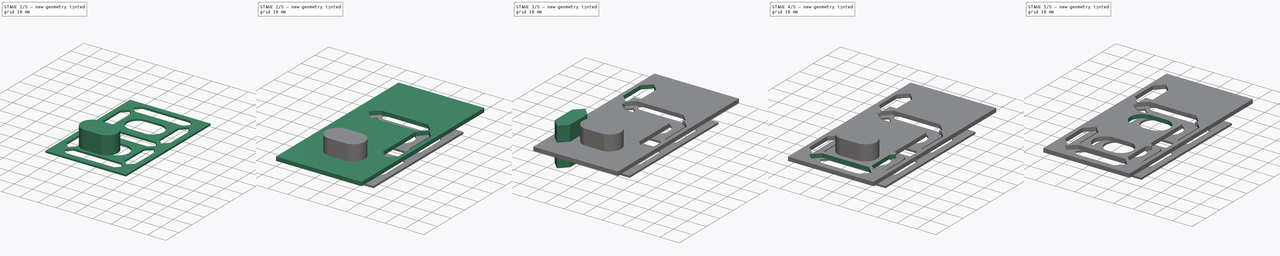
[diagram: build sequence overview — one tinted view per stage of 5, left to right]
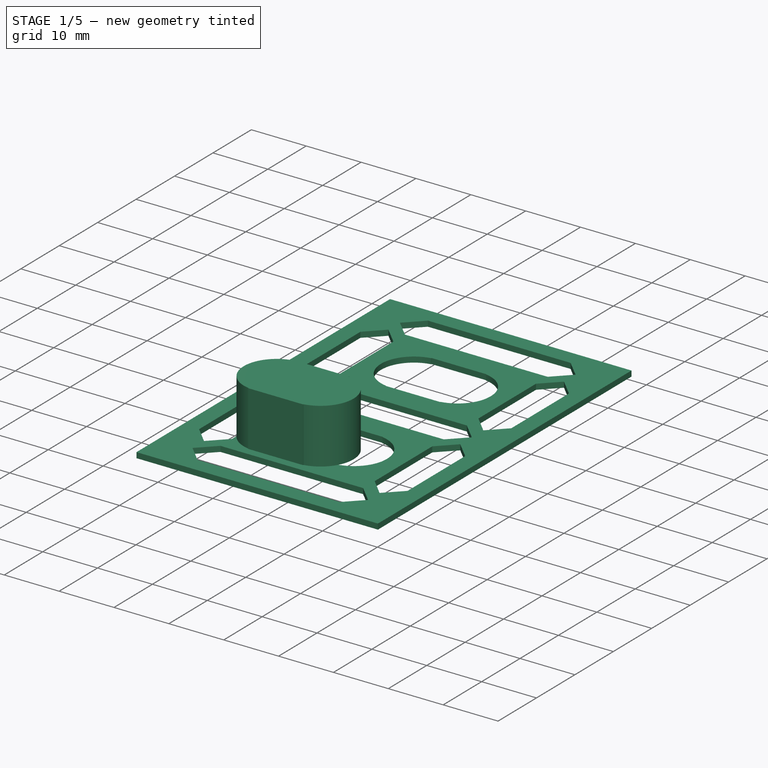
[diagram: stage 1 of 5 — iso view after this stage's code; geometry added in this stage tinted green]
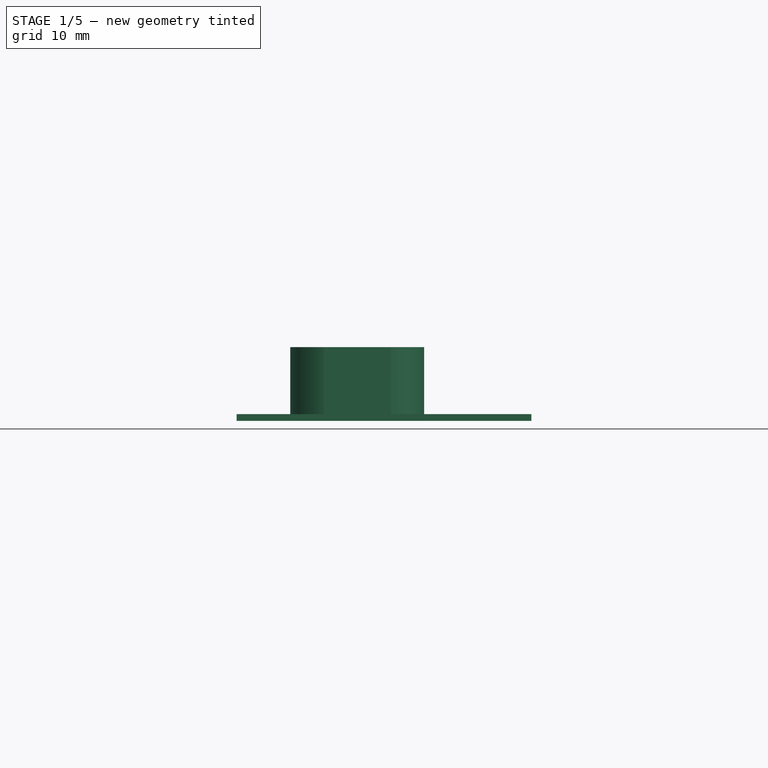
[diagram: stage 1 of 5 — front view after this stage's code; geometry added in this stage tinted green]
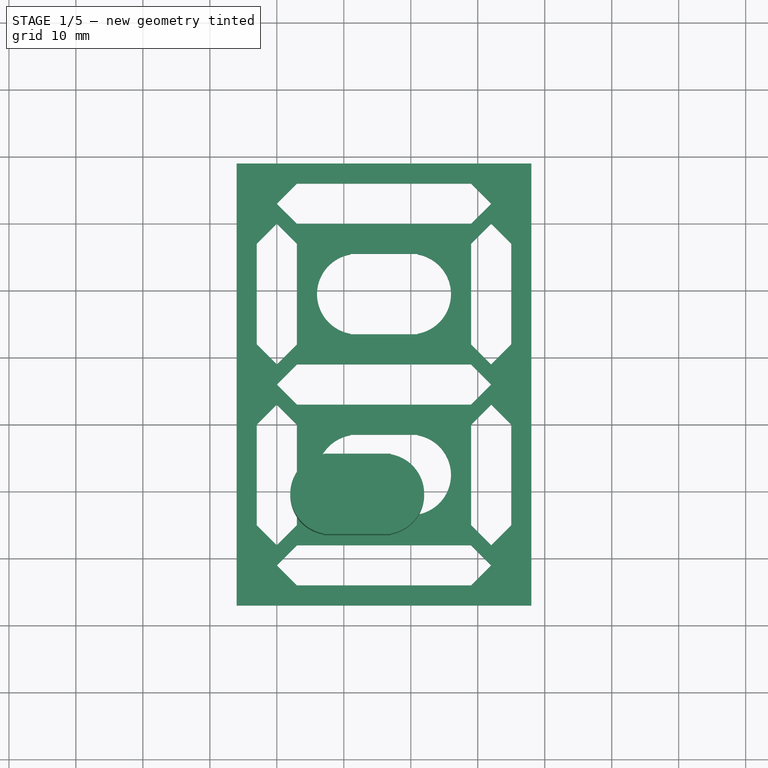
[diagram: stage 1 of 5 — top view after this stage's code; geometry added in this stage tinted green]
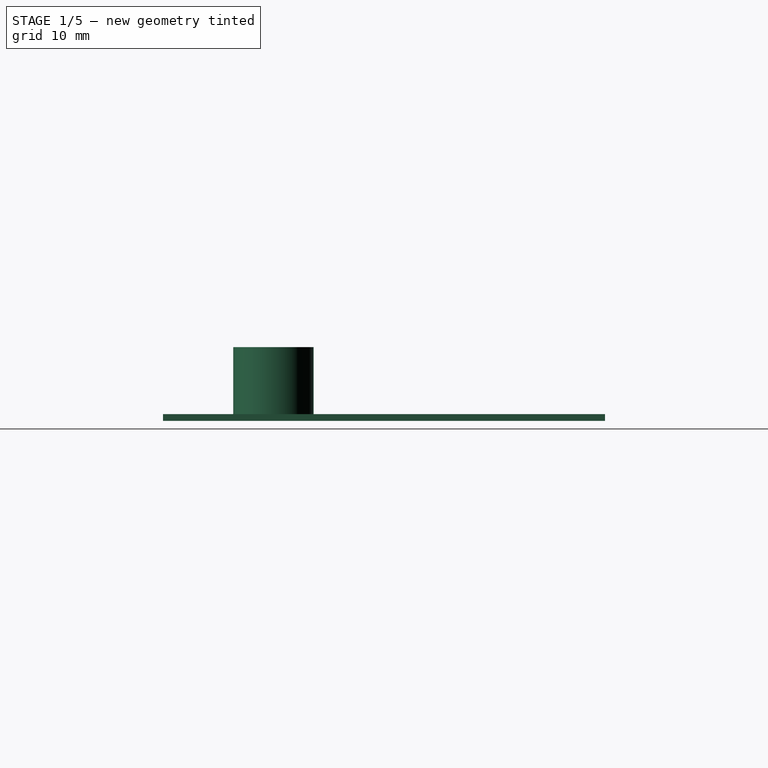
[diagram: stage 1 of 5 — right view after this stage's code; geometry added in this stage tinted green]
FCSTD DOCUMENT  (FreeCAD 0.17R13522 (Git))
Label: 7segments
License: CreativeCommons Attribution-ShareAlike
LicenseURL: http://creativecommons.org/licenses/by-sa/4.0/
objects: Part::Cut×10, Part::Box×9, Sketcher::SketchObject×7, Part::Extrusion×7, Part::Cylinder×4, Part::MultiFuse×4, Part::Feature×2
note: 43 computed .brp shape members not serialized (recipe doc carries the construction recipe); baked Part::Feature solids carry a one-line shape summary decoded from their .brp

FEATURE [Part::Cylinder] Cylinder
  Angle = 360
  AttacherType = Attacher::AttachEngine3D
  Height = 10
  Placement = pos=(18,19.5,0) rot=(0,0,1;0rad)
  Radius = 6
FEATURE [Part::Cylinder] Cylinder001
  Angle = 360
  AttacherType = Attacher::AttachEngine3D
  Height = 10
  Placement = pos=(26,19.5,0) rot=(0,0,1;0rad)
  Radius = 6
FEATURE [Part::Box] Box006  label="Cube006"
  AttacherType = Attacher::AttachEngine3D
  Height = 10
  Length = 10
  Placement = pos=(17,13.5,0) rot=(0,0,1;0rad)
  Width = 12
FEATURE [Part::MultiFuse] Fusion
  Shapes = -> [Cylinder,Box006]
FEATURE [Part::MultiFuse] Fusion001
  Shapes = -> [Cylinder001,Fusion]
FEATURE [Part::Feature] Cut008001  label="plantilla_1mm"
  Placement = pos=(4,3,-1) rot=(0,0,1;0rad)
  shape: bbox 44 x 66 x 4 mm, 64 faces (baked)
FEATURE [Part::Box] Box008  label="Cube008"
  AttacherType = Attacher::AttachEngine3D
  Height = 10
  Length = 52
  Width = 81
FEATURE [Part::Cut] Cut008002  label="plantilla_1mm001"
  Base = -> Cut008001
  Tool = -> Box008
FEATURE [Part::Feature] Fusion002001  label="Fusion004"
  Placement = pos=(0,27,0) rot=(0,0,1;0rad)
  shape: bbox 20 x 12 x 10 mm, 35 faces (baked)
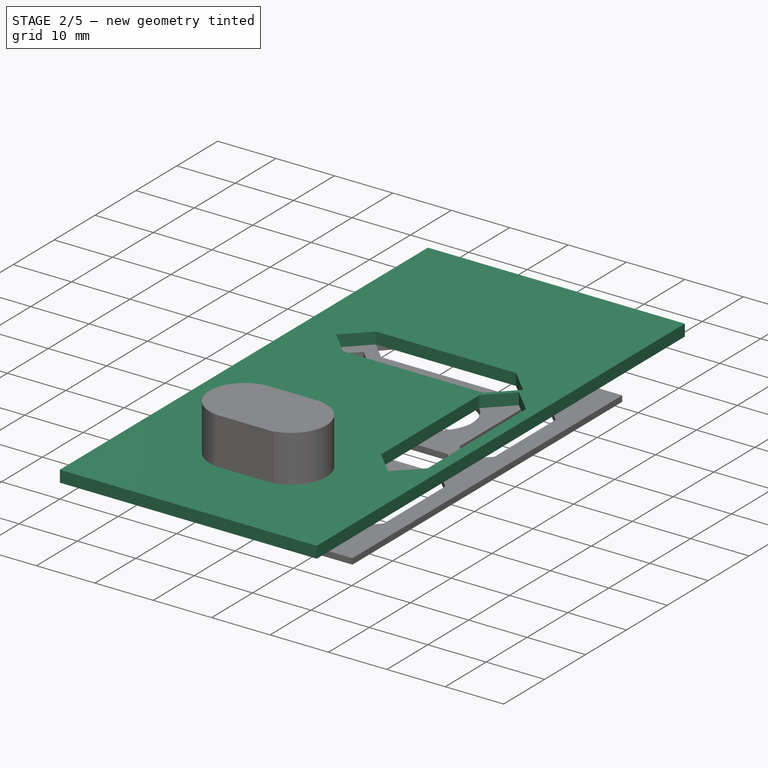
[diagram: stage 2 of 5 — iso view after this stage's code; geometry added in this stage tinted green]
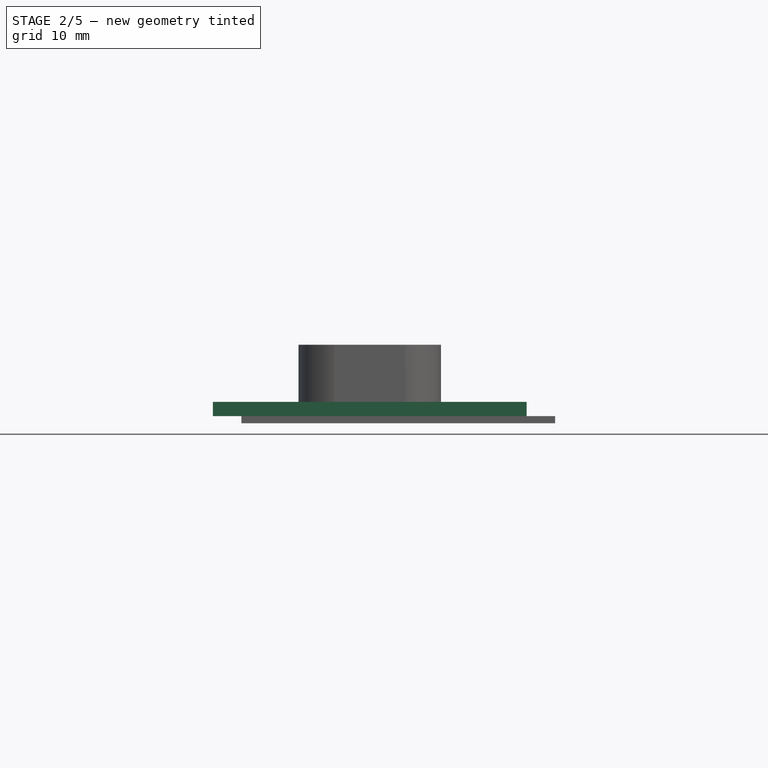
[diagram: stage 2 of 5 — front view after this stage's code; geometry added in this stage tinted green]
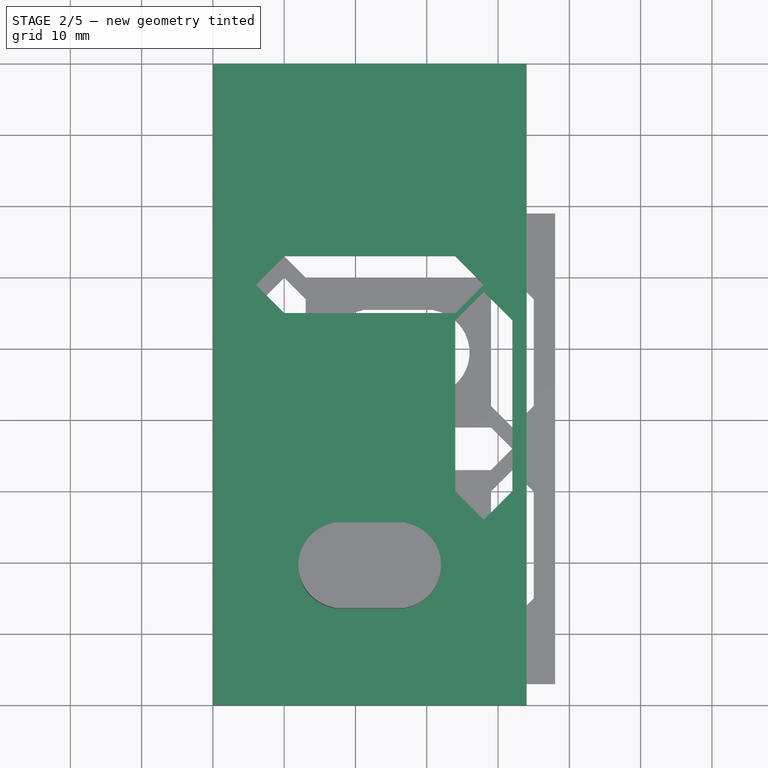
[diagram: stage 2 of 5 — top view after this stage's code; geometry added in this stage tinted green]
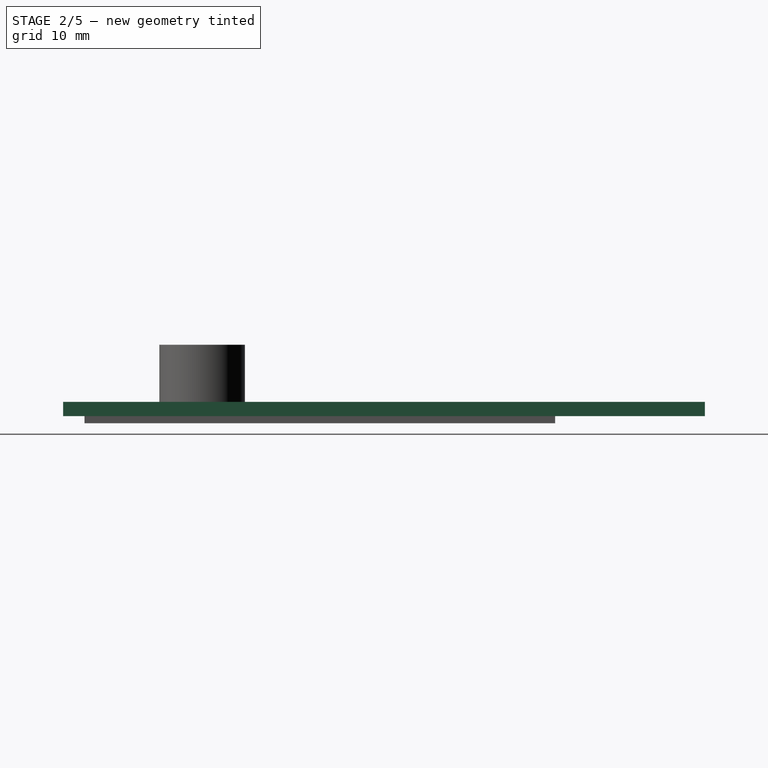
[diagram: stage 2 of 5 — right view after this stage's code; geometry added in this stage tinted green]
FEATURE [Part::Box] Box  label="Cube"
  AttacherType = Attacher::AttachEngine3D
  Height = 2
  Length = 44
  Width = 90
FEATURE [Sketcher::SketchObject] Sketch002  label="Sketch_G"
  ExternalGeometry = -> [Box]
  MapMode = 5
  Placement = pos=(0,0,2) rot=(0,0,1;0rad)
  Support = -> [Box]
  sketch-geometry (6):
    g0: LineSegment StartX=10 StartY=61 StartZ=0 EndX=6 EndY=57 EndZ=0
    g1: LineSegment StartX=6 StartY=57 StartZ=0 EndX=10 EndY=53 EndZ=0
    g2: LineSegment StartX=10 StartY=53 StartZ=0 EndX=34 EndY=53 EndZ=0
    g3: LineSegment StartX=34 StartY=53 StartZ=0 EndX=38 EndY=57 EndZ=0
    g4: LineSegment StartX=38 StartY=57 StartZ=0 EndX=34 EndY=61 EndZ=0
    g5: LineSegment StartX=34 StartY=61 StartZ=0 EndX=10 EndY=61 EndZ=0
  constraints (18):
    c: Coincident(g0,g1)
    c: Coincident(g1,g2)
    c: Horizontal(g2)
    c: Coincident(g2,g3)
    c: Coincident(g3,g4)
    c: Coincident(g4,g5)
    c: Coincident(g5,g0)
    c: Horizontal(g5)
    c: DistanceY(g1,g0) = 8
    c: Angle(g0,g5) = 2.35619
    c: Angle(g2,g1) = 2.35619
    c: Angle(g5,g4) = 2.35619
    c: Angle(g3,g2) = 2.35619
    c: DistanceX(g0,g1) = 0
    c: DistanceX(g4,g2) = 0
    c: DistanceX(g-1,g0) = 6
    c: DistanceX(g3,g-3) = 6
    c: DistanceY(g3,g-3) = 33
FEATURE [Part::Box] Box001  label="Cube001"
  AttacherType = Attacher::AttachEngine3D
  Height = 10
  Length = 44
  Width = 66
FEATURE [Sketcher::SketchObject] Sketch005  label="Sketch_E"
  ExternalGeometry = -> [Box003]
  MapMode = 5
  Placement = pos=(0,0,10) rot=(0,0,1;0rad)
  Support = -> [Box003]
  sketch-geometry (6):
    g0: LineSegment StartX=6 StartY=30 StartZ=0 EndX=10 EndY=26 EndZ=0
    g1: LineSegment StartX=10 StartY=26 StartZ=0 EndX=10 EndY=13 EndZ=0
    g2: LineSegment StartX=10 StartY=13 StartZ=0 EndX=6 EndY=9 EndZ=0
    g3: LineSegment StartX=6 StartY=9 StartZ=0 EndX=2 EndY=13 EndZ=0
    g4: LineSegment StartX=2 StartY=13 StartZ=0 EndX=2 EndY=26 EndZ=0
    g5: LineSegment StartX=2 StartY=26 StartZ=0 EndX=6 EndY=30 EndZ=0
  constraints (18):
    c: Coincident(g0,g1)
    c: Vertical(g1)
    c: Coincident(g1,g2)
    c: Coincident(g2,g3)
    c: Coincident(g3,g4)
    c: Vertical(g4)
    c: Coincident(g4,g5)
    c: Angle(g4,g5) = 2.35619
    c: Angle(g0,g1) = 2.35619
    c: Angle(g3,g4) = 2.35619
    c: Angle(g1,g2) = 2.35619
    c: DistanceX(g3,g1) = 8
    c: DistanceY(g3,g1) = 0
    c: DistanceY(g0,g4) = 0
    c: Coincident(g0,g5)
    c: DistanceX(g-3,g0) = 6
    c: DistanceY(g-1,g2) = 9
    c: DistanceY(g-1,g0) = 30
FEATURE [Part::Box] Box004  label="Cube004"
  AttacherType = Attacher::AttachEngine3D
  Height = 10
  Length = 44
  Width = 66
FEATURE [Sketcher::SketchObject] Sketch007  label="Sketch_C"
  ExternalGeometry = -> [Box005]
  MapMode = 5
  Placement = pos=(0,0,10) rot=(0,0,1;0rad)
  Support = -> [Box005]
  sketch-geometry (6):
    g0: LineSegment StartX=38 StartY=30 StartZ=0 EndX=42 EndY=26 EndZ=0
    g1: LineSegment StartX=42 StartY=26 StartZ=0 EndX=42 EndY=13 EndZ=0
    g2: LineSegment StartX=42 StartY=13 StartZ=0 EndX=38 EndY=9 EndZ=0
    g3: LineSegment StartX=38 StartY=9 StartZ=0 EndX=34 EndY=13 EndZ=0
    g4: LineSegment StartX=34 StartY=13 StartZ=0 EndX=34 EndY=26 EndZ=0
    g5: LineSegment StartX=34 StartY=26 StartZ=0 EndX=38 EndY=30 EndZ=0
  constraints (18):
    c: Coincident(g0,g1)
    c: Vertical(g1)
    c: Coincident(g1,g2)
    c: Coincident(g2,g3)
    c: Coincident(g3,g4)
    c: Vertical(g4)
    c: Coincident(g4,g5)
    c: Angle(g4,g5) = 2.35619
    c: Angle(g0,g1) = 2.35619
    c: Angle(g3,g4) = 2.35619
    c: Angle(g1,g2) = 2.35619
    c: DistanceX(g3,g1) = 8
    c: DistanceY(g3,g1) = 0
    c: DistanceY(g0,g4) = 0
    c: Coincident(g0,g5)
    c: DistanceX(g-3,g0) = 38
    c: DistanceY(g-1,g0) = 30
    c: DistanceY(g-1,g2) = 9
FEATURE [Part::Extrusion] Extrude  label="Extrude_A"
  Base = -> Sketch003
  Dir = (0,0,1)
  DirMode = 2
  FaceMakerClass = Part::FaceMakerBullseye
  LengthFwd = 20
  LengthRev = 0
  Placement = pos=(0,0,-14) rot=(0,0,1;0rad)
  Solid = true
  Symmetric = false
FEATURE [Part::Extrusion] Extrude001  label="Extrude_B"
  Base = -> Sketch006
  Dir = (0,0,1)
  DirMode = 2
  FaceMakerClass = Part::FaceMakerBullseye
  LengthFwd = 20
  LengthRev = 0
  Placement = pos=(0,0,-17) rot=(0,0,1;0rad)
  Solid = true
  Symmetric = false
FEATURE [Part::Cut] Cut
  Base = -> Box
  Tool = -> Extrude
FEATURE [Part::Cut] Cut001
  Base = -> Cut
  Tool = -> Extrude001
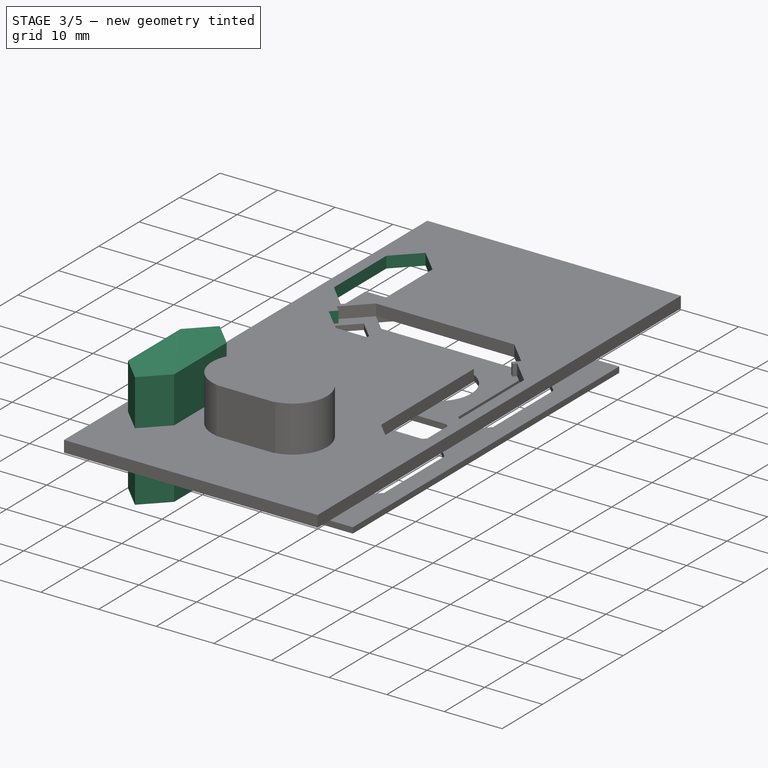
[diagram: stage 3 of 5 — iso view after this stage's code; geometry added in this stage tinted green]
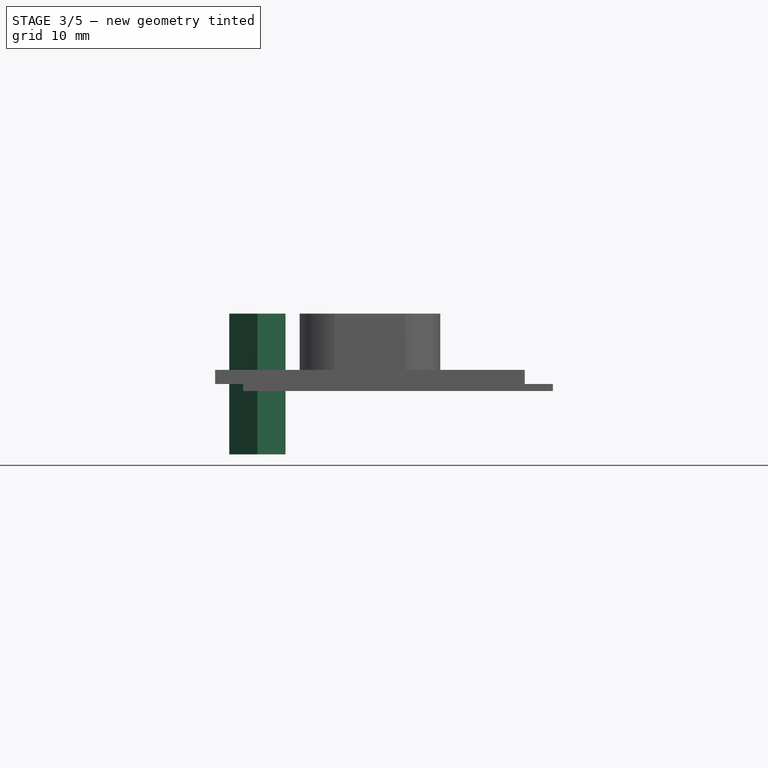
[diagram: stage 3 of 5 — front view after this stage's code; geometry added in this stage tinted green]
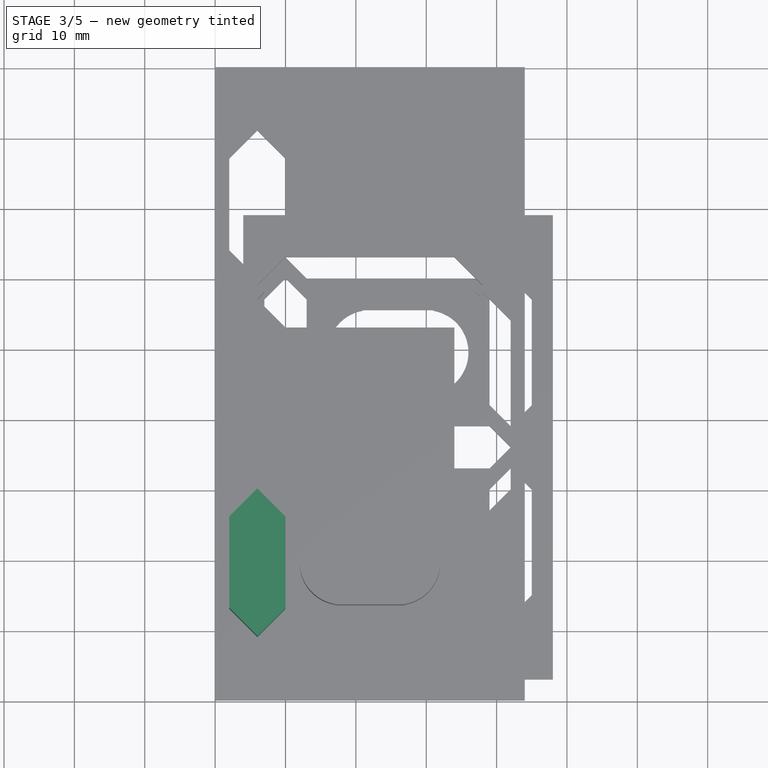
[diagram: stage 3 of 5 — top view after this stage's code; geometry added in this stage tinted green]
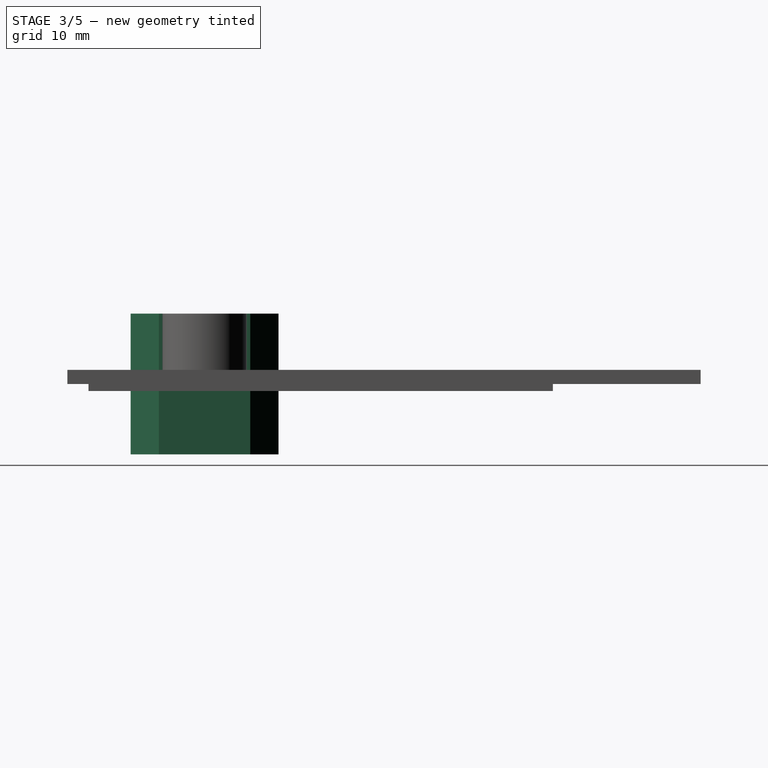
[diagram: stage 3 of 5 — right view after this stage's code; geometry added in this stage tinted green]
FEATURE [Sketcher::SketchObject] Sketch004  label="Sketch_D"
  ExternalGeometry = -> [Box002]
  MapMode = 5
  Placement = pos=(0,0,10) rot=(0,0,1;0rad)
  Support = -> [Box002]
  sketch-geometry (6):
    g0: LineSegment StartX=10 StartY=11 StartZ=0 EndX=6 EndY=7 EndZ=0
    g1: LineSegment StartX=6 StartY=7 StartZ=0 EndX=10 EndY=3 EndZ=0
    g2: LineSegment StartX=10 StartY=3 StartZ=0 EndX=34 EndY=3 EndZ=0
    g3: LineSegment StartX=34 StartY=3 StartZ=0 EndX=38 EndY=7 EndZ=0
    g4: LineSegment StartX=38 StartY=7 StartZ=0 EndX=34 EndY=11 EndZ=0
    g5: LineSegment StartX=34 StartY=11 StartZ=0 EndX=10 EndY=11 EndZ=0
  constraints (18):
    c: Coincident(g0,g1)
    c: Coincident(g1,g2)
    c: Horizontal(g2)
    c: Coincident(g2,g3)
    c: Coincident(g3,g4)
    c: Coincident(g4,g5)
    c: Coincident(g5,g0)
    c: Horizontal(g5)
    c: DistanceY(g1,g0) = 8
    c: Angle(g0,g5) = 2.35619
    c: Angle(g2,g1) = 2.35619
    c: Angle(g5,g4) = 2.35619
    c: Angle(g3,g2) = 2.35619
    c: DistanceX(g0,g1) = 0
    c: DistanceX(g4,g2) = 0
    c: DistanceX(g-1,g0) = 6
    c: DistanceX(g3,g-3) = 6
    c: DistanceY(g-3,g2) = 3
FEATURE [Sketcher::SketchObject] Sketch  label="Sketch_F"
  ExternalGeometry = -> [Box]
  MapMode = 5
  Placement = pos=(0,0,2) rot=(0,0,1;0rad)
  Support = -> [Box]
  sketch-geometry (6):
    g0: LineSegment StartX=6 StartY=81 StartZ=0 EndX=10 EndY=77 EndZ=0
    g1: LineSegment StartX=10 StartY=77 StartZ=0 EndX=10 EndY=64 EndZ=0
    g2: LineSegment StartX=10 StartY=64 StartZ=0 EndX=6 EndY=60 EndZ=0
    g3: LineSegment StartX=6 StartY=60 StartZ=0 EndX=2 EndY=64 EndZ=0
    g4: LineSegment StartX=2 StartY=64 StartZ=0 EndX=2 EndY=77 EndZ=0
    g5: LineSegment StartX=2 StartY=77 StartZ=0 EndX=6 EndY=81 EndZ=0
  constraints (18):
    c: Coincident(g0,g1)
    c: Vertical(g1)
    c: Coincident(g1,g2)
    c: Coincident(g2,g3)
    c: Coincident(g3,g4)
    c: Vertical(g4)
    c: Coincident(g4,g5)
    c: Angle(g4,g5) = 2.35619
    c: Angle(g0,g1) = 2.35619
    c: Angle(g3,g4) = 2.35619
    c: Angle(g1,g2) = 2.35619
    c: DistanceX(g3,g1) = 8
    c: DistanceY(g3,g1) = 0
    c: DistanceY(g0,g4) = 0
    c: Coincident(g0,g5)
    c: DistanceX(g-3,g0) = 6
    c: DistanceY(g0,g-3) = 9
    c: DistanceY(g2,g-3) = 30
FEATURE [Part::Box] Box003  label="Cube003"
  AttacherType = Attacher::AttachEngine3D
  Height = 10
  Length = 44
  Width = 66
FEATURE [Part::Extrusion] Extrude004  label="Extrude_E"
  Base = -> Sketch005
  Dir = (0,0,1)
  DirMode = 2
  FaceMakerClass = Part::FaceMakerBullseye
  LengthFwd = 20
  LengthRev = 0
  Placement = pos=(0,0,-20) rot=(0,0,1;0rad)
  Solid = true
  Symmetric = false
FEATURE [Part::Extrusion] Extrude005  label="Extrude_F"
  Base = -> Sketch
  Dir = (0,0,1)
  DirMode = 2
  FaceMakerClass = Part::FaceMakerBullseye
  LengthFwd = 20
  LengthRev = 0
  Placement = pos=(0,0,-12) rot=(0,0,1;0rad)
  Solid = true
  Symmetric = false
FEATURE [Part::Extrusion] Extrude006  label="Extrude_G"
  Base = -> Sketch002
  Dir = (0,0,1)
  DirMode = 2
  FaceMakerClass = Part::FaceMakerBullseye
  LengthFwd = 20
  LengthRev = 0
  Placement = pos=(0,0,-13) rot=(0,0,1;0rad)
  Solid = true
  Symmetric = false
FEATURE [Part::Cut] Cut002
  Base = -> Cut001
  Tool = -> Extrude006
FEATURE [Part::Cut] Cut003
  Base = -> Cut002
  Tool = -> Extrude005
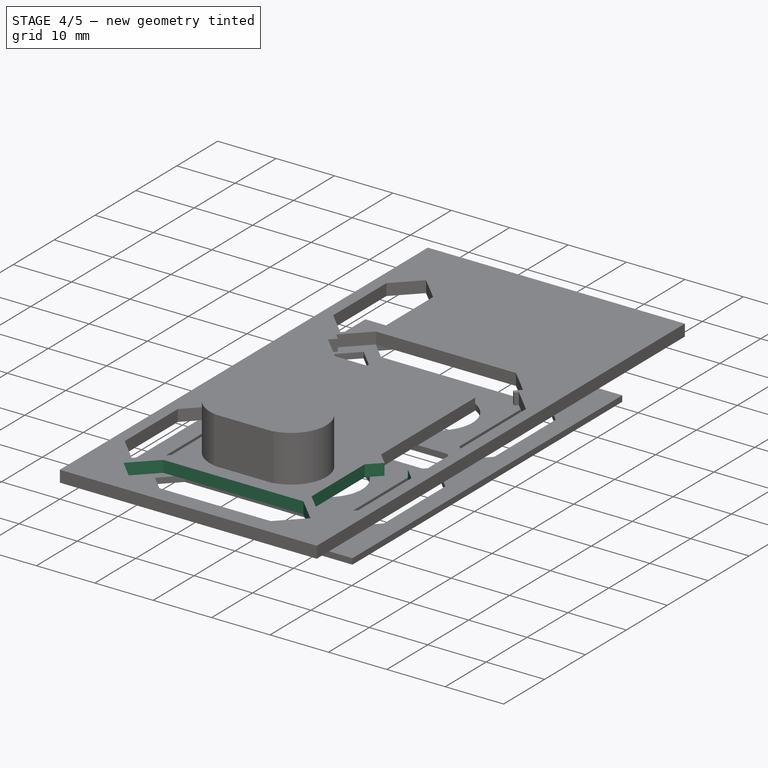
[diagram: stage 4 of 5 — iso view after this stage's code; geometry added in this stage tinted green]
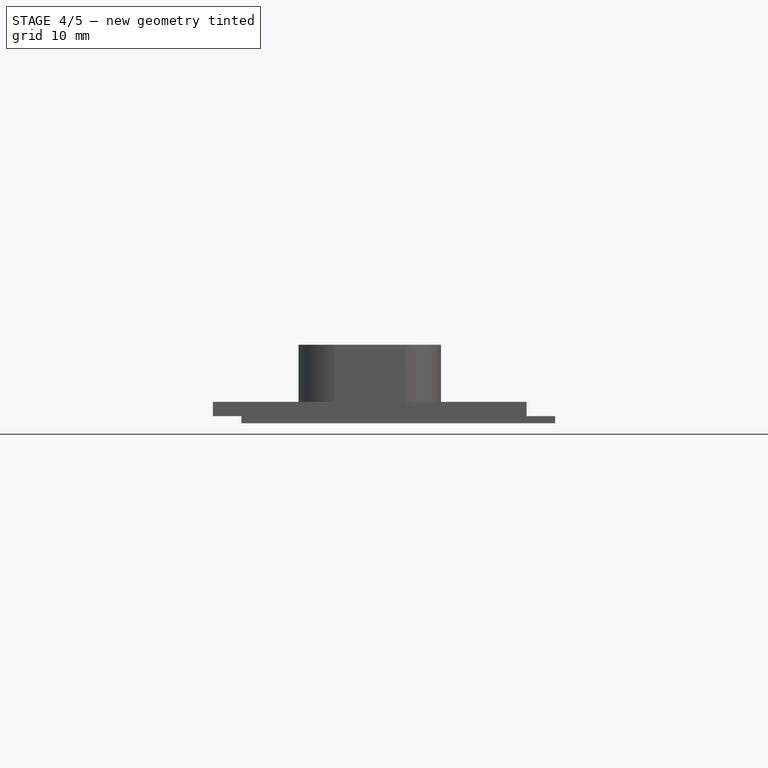
[diagram: stage 4 of 5 — front view after this stage's code; geometry added in this stage tinted green]
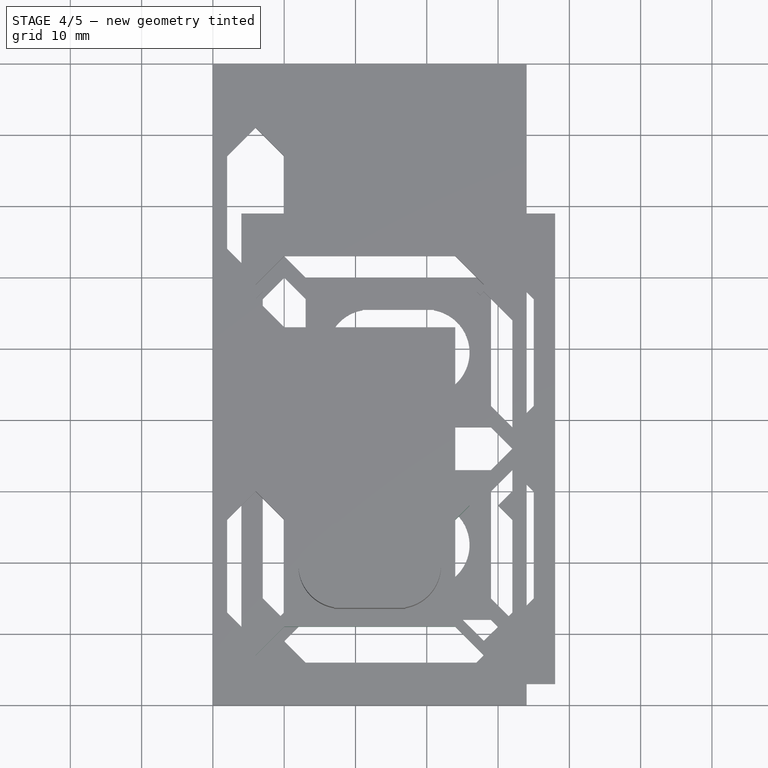
[diagram: stage 4 of 5 — top view after this stage's code; geometry added in this stage tinted green]
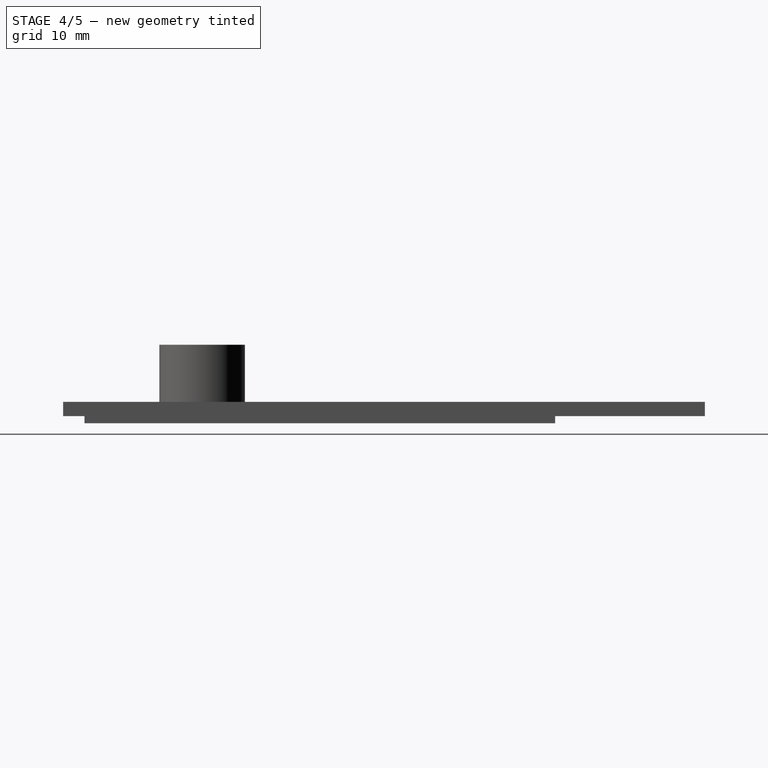
[diagram: stage 4 of 5 — right view after this stage's code; geometry added in this stage tinted green]
FEATURE [Sketcher::SketchObject] Sketch003  label="Sketch_A"
  ExternalGeometry = -> [Box001]
  MapMode = 5
  Placement = pos=(0,0,10) rot=(0,0,1;0rad)
  Support = -> [Box001]
  sketch-geometry (6):
    g0: LineSegment StartX=10 StartY=63 StartZ=0 EndX=6 EndY=59 EndZ=0
    g1: LineSegment StartX=6 StartY=59 StartZ=0 EndX=10 EndY=55 EndZ=0
    g2: LineSegment StartX=10 StartY=55 StartZ=0 EndX=34 EndY=55 EndZ=0
    g3: LineSegment StartX=34 StartY=55 StartZ=0 EndX=38 EndY=59 EndZ=0
    g4: LineSegment StartX=38 StartY=59 StartZ=0 EndX=34 EndY=63 EndZ=0
    g5: LineSegment StartX=34 StartY=63 StartZ=0 EndX=10 EndY=63 EndZ=0
  constraints (17):
    c: Coincident(g0,g1)
    c: Coincident(g1,g2)
    c: Horizontal(g2)
    c: Coincident(g2,g3)
    c: Coincident(g3,g4)
    c: Coincident(g4,g5)
    c: Coincident(g5,g0)
    c: Horizontal(g5)
    c: DistanceY(g1,g0) = 8
    c: Angle(g0,g5) = 2.35619
    c: Angle(g2,g1) = 2.35619
    c: Angle(g5,g4) = 2.35619
    c: Angle(g3,g2) = 2.35619
    c: DistanceX(g0,g1) = 0
    c: DistanceX(g4,g2) = 0
    c: DistanceX(g-1,g0) = 6
    c: DistanceX(g3,g-3) = 6
FEATURE [Part::Box] Box002  label="Cube002"
  AttacherType = Attacher::AttachEngine3D
  Height = 10
  Length = 44
  Width = 66
FEATURE [Sketcher::SketchObject] Sketch006  label="Sketch_B"
  ExternalGeometry = -> [Box004]
  MapMode = 5
  Placement = pos=(0,0,10) rot=(0,0,1;0rad)
  Support = -> [Box004]
  sketch-geometry (6):
    g0: LineSegment StartX=38 StartY=58 StartZ=0 EndX=42 EndY=54 EndZ=0
    g1: LineSegment StartX=42 StartY=54 StartZ=0 EndX=42 EndY=30 EndZ=0
    g2: LineSegment StartX=42 StartY=30 StartZ=0 EndX=38 EndY=26 EndZ=0
    g3: LineSegment StartX=38 StartY=26 StartZ=0 EndX=34 EndY=30 EndZ=0
    g4: LineSegment StartX=34 StartY=30 StartZ=0 EndX=34 EndY=54 EndZ=0
    g5: LineSegment StartX=34 StartY=54 StartZ=0 EndX=38 EndY=58 EndZ=0
  constraints (18):
    c: Coincident(g0,g1)
    c: Vertical(g1)
    c: Coincident(g1,g2)
    c: Coincident(g2,g3)
    c: Coincident(g3,g4)
    c: Vertical(g4)
    c: Coincident(g4,g5)
    c: Angle(g4,g5) = 2.35619
    c: Angle(g0,g1) = 2.35619
    c: Angle(g3,g4) = 2.35619
    c: Angle(g1,g2) = 2.35619
    c: DistanceX(g3,g1) = 8
    c: DistanceY(g3,g1) = 0
    c: DistanceY(g0,g4) = 0
    c: Coincident(g0,g5)
    c: DistanceX(g-3,g0) = 38
    c: DistanceY(g0,g-3) = 8
    c: DistanceY(g2,g-3) = 40
FEATURE [Part::Box] Box005  label="Cube005"
  AttacherType = Attacher::AttachEngine3D
  Height = 10
  Length = 44
  Width = 66
FEATURE [Part::Extrusion] Extrude002  label="Extrude_C"
  Base = -> Sketch007
  Dir = (0,0,1)
  DirMode = 2
  FaceMakerClass = Part::FaceMakerBullseye
  LengthFwd = 20
  LengthRev = 0
  Placement = pos=(0,0,-18) rot=(0,0,1;0rad)
  Solid = true
  Symmetric = false
FEATURE [Part::Extrusion] Extrude003  label="Extrude_D"
  Base = -> Sketch004
  Dir = (0,0,1)
  DirMode = 2
  FaceMakerClass = Part::FaceMakerBullseye
  LengthFwd = 20
  LengthRev = 0
  Placement = pos=(0,0,-20) rot=(0,0,1;0rad)
  Solid = true
  Symmetric = false
FEATURE [Part::Cut] Cut004
  Base = -> Cut003
  Tool = -> Extrude004
FEATURE [Part::Cut] Cut005
  Base = -> Cut004
  Tool = -> Extrude003
FEATURE [Part::Cut] Cut006
  Base = -> Cut005
  Tool = -> Extrude002
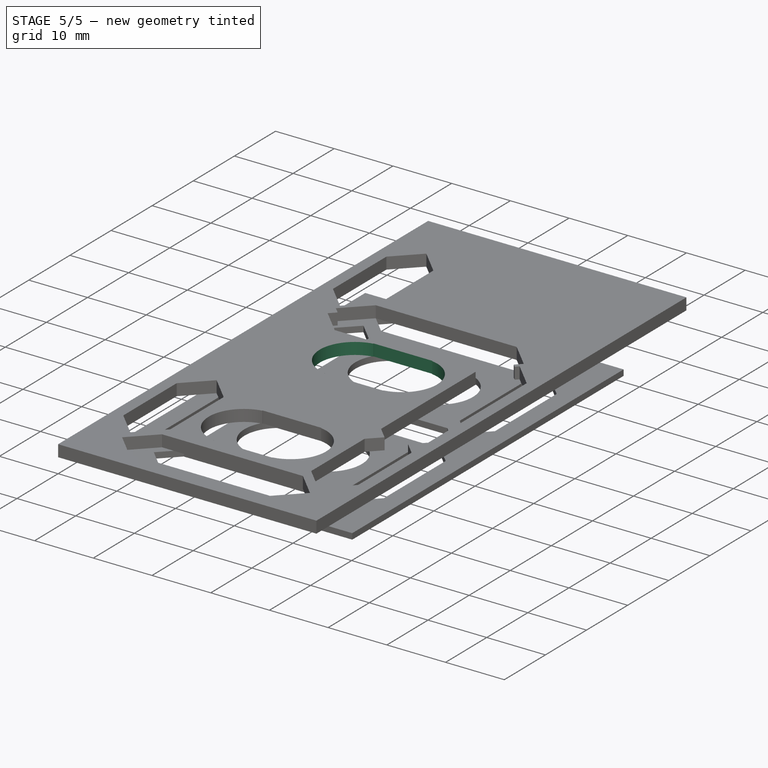
[diagram: stage 5 of 5 — iso view after this stage's code; geometry added in this stage tinted green]
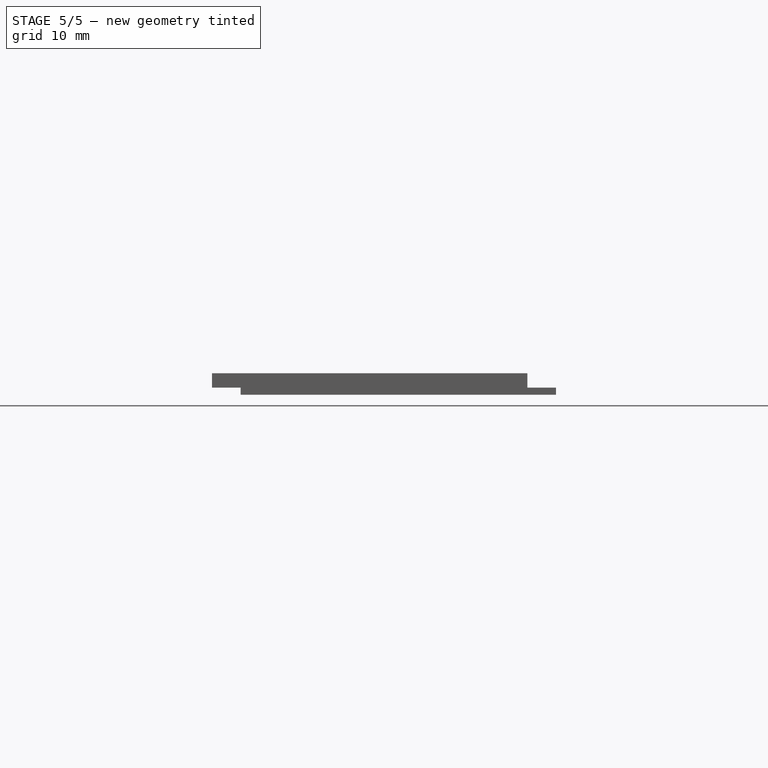
[diagram: stage 5 of 5 — front view after this stage's code; geometry added in this stage tinted green]
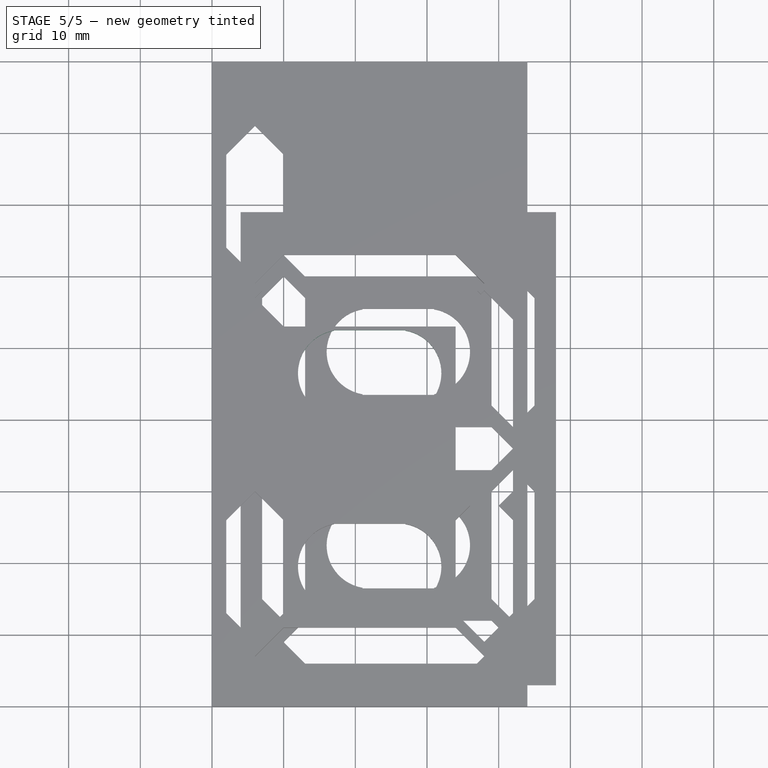
[diagram: stage 5 of 5 — top view after this stage's code; geometry added in this stage tinted green]
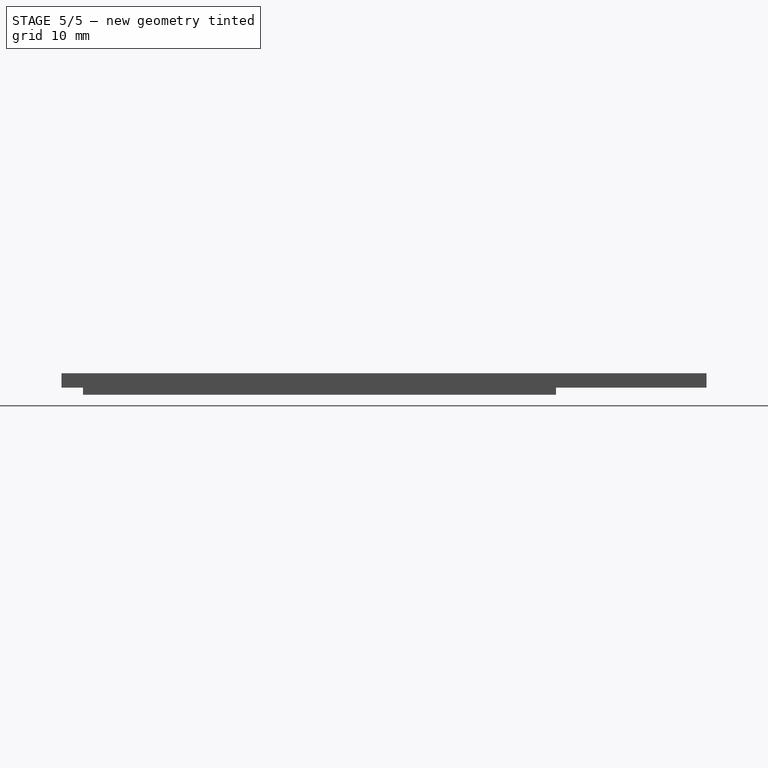
[diagram: stage 5 of 5 — right view after this stage's code; geometry added in this stage tinted green]
FEATURE [Part::Cylinder] Cylinder002
  Angle = 360
  AttacherType = Attacher::AttachEngine3D
  Height = 10
  Placement = pos=(26,19.5,0) rot=(0,0,1;0rad)
  Radius = 6
FEATURE [Part::Cylinder] Cylinder003
  Angle = 360
  AttacherType = Attacher::AttachEngine3D
  Height = 10
  Placement = pos=(18,19.5,0) rot=(0,0,1;0rad)
  Radius = 6
FEATURE [Part::Box] Box007  label="Cube007"
  AttacherType = Attacher::AttachEngine3D
  Height = 10
  Length = 10
  Placement = pos=(17,13.5,0) rot=(0,0,1;0rad)
  Width = 12
FEATURE [Part::MultiFuse] Fusion003
  Shapes = -> [Cylinder003,Box007]
FEATURE [Part::MultiFuse] Fusion002
  Placement = pos=(0,27,0) rot=(0,0,1;0rad)
  Shapes = -> [Cylinder002,Fusion003]
FEATURE [Part::Cut] Cut007
  Base = -> Cut006
  Tool = -> Fusion001
FEATURE [Part::Cut] Cut008  label="plantilla_4mm"
  Base = -> Cut007
  Tool = -> Fusion002
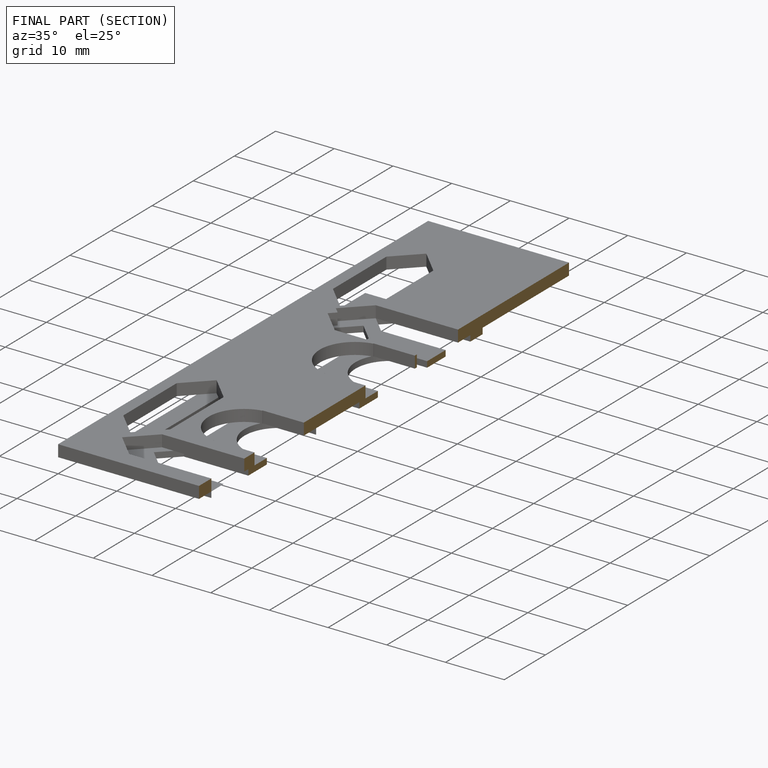
[diagram: finished part — half-section view (interior)]
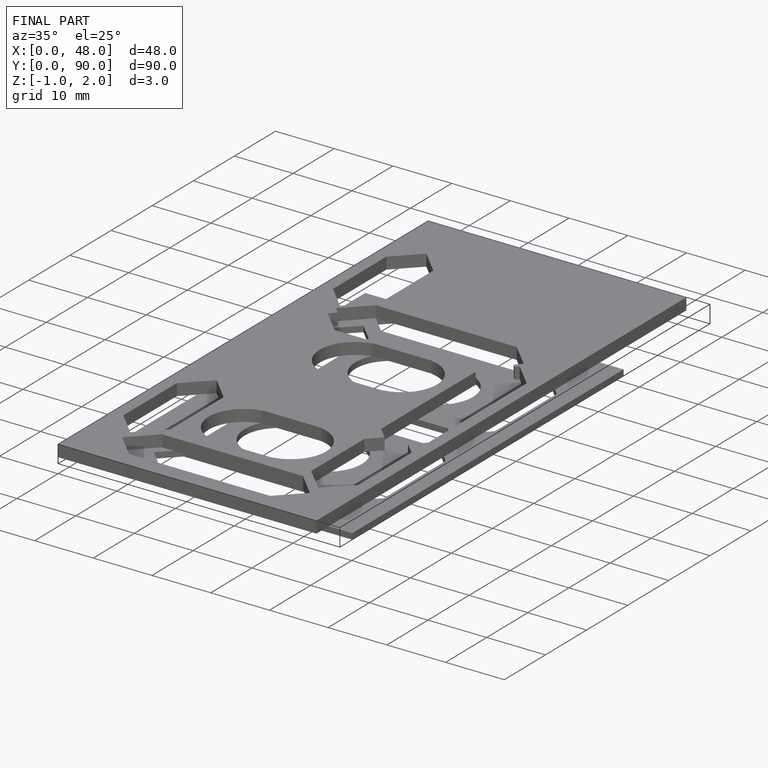
[diagram: finished part — iso view with bounding-box wireframe]
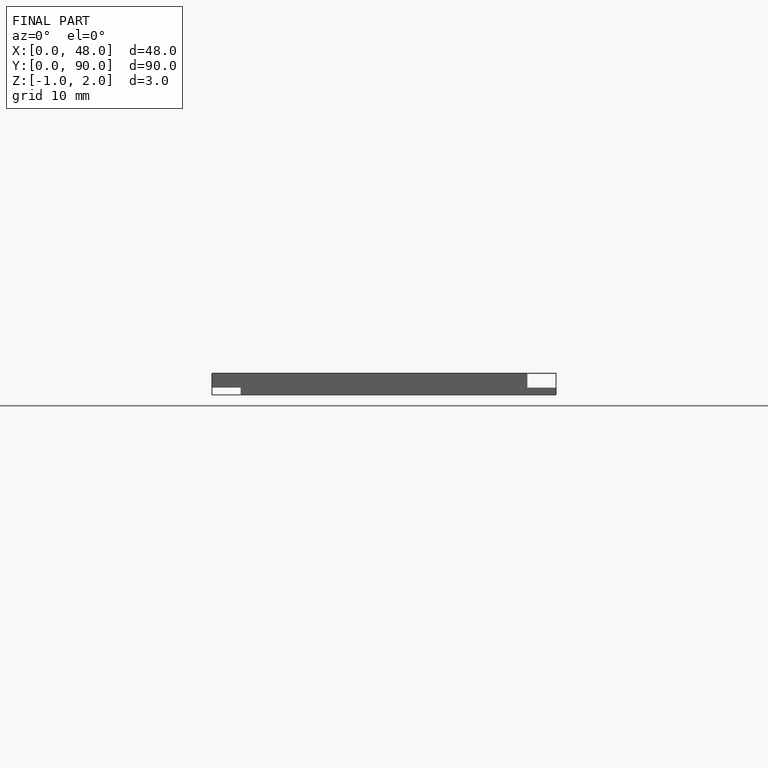
[diagram: finished part — front view with bounding-box wireframe]
